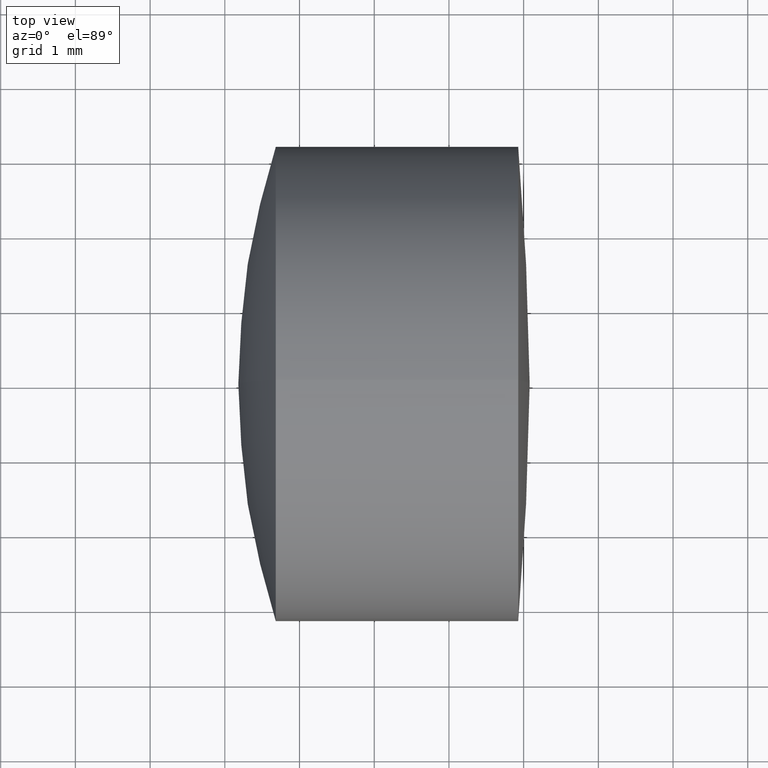
[diagram: clean part render]
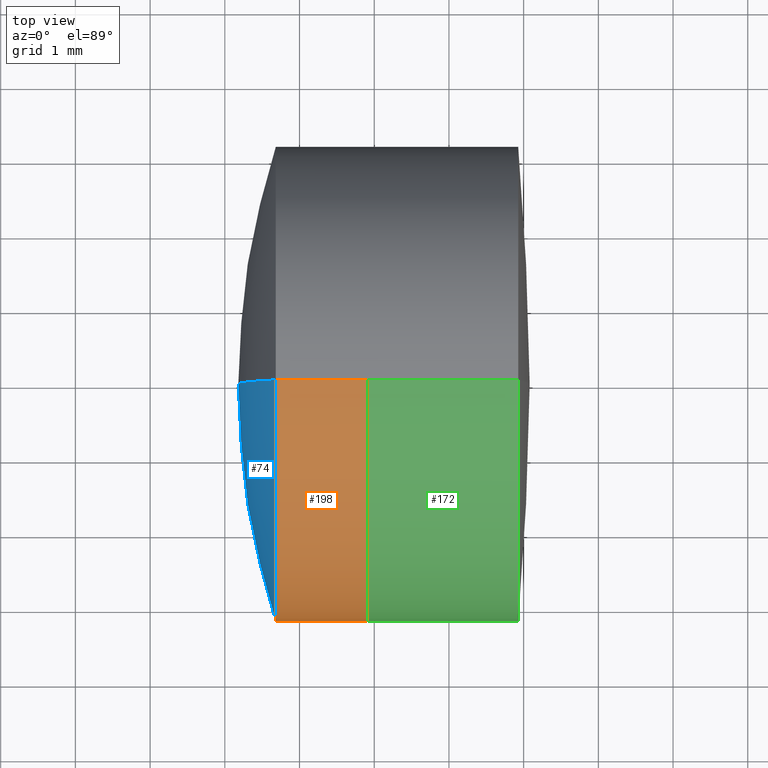
[diagram: same view with three faces highlighted in distinct colors, each labeled with its STEP entity id]
A machine part, top view with three faces highlighted in distinct colors.
Their STEP definitions:

[orange] entity #198 — the highlighted cylindrical surface (partial cylindrical patch) has radius 3.175 mm, axis along (-1, -0, -0).
#4 = CIRCLE ( 'NONE', #324, 3.175000000000000300 ) ;
#9 = EDGE_LOOP ( 'NONE', ( #276, #259, #87, #168 ) ) ;
#47 = VERTEX_POINT ( 'NONE', #88 ) ;
#63 = EDGE_CURVE ( 'NONE', #180, #47, #4, .T. ) ;
#68 = CYLINDRICAL_SURFACE ( 'NONE', #325, 3.174999999999999800 ) ;
#80 = VERTEX_POINT ( 'NONE', #294 ) ;
#86 = DIRECTION ( 'NONE',  ( -1.000000000000000000, -0.0000000000000000000, -0.0000000000000000000 ) ) ;
#87 = ORIENTED_EDGE ( 'NONE', *, *, #167, .T. ) ;
#88 = CARTESIAN_POINT ( 'NONE',  ( 262.9052741446802200, 0.0000000000000000000, 3.175000000000000300 ) ) ;
#92 = CARTESIAN_POINT ( 'NONE',  ( 124.5233095260452400, 3.888253587292846100E-016, -3.174999999999999800 ) ) ;
#95 = CIRCLE ( 'NONE', #319, 3.174999999999999800 ) ;
#102 = DIRECTION ( 'NONE',  ( 0.0000000000000000000, 0.0000000000000000000, 1.000000000000000000 ) ) ;
#107 = CARTESIAN_POINT ( 'NONE',  ( 124.5233095260452400, 0.0000000000000000000, 3.174999999999999800 ) ) ;
#112 = DIRECTION ( 'NONE',  ( -1.000000000000000000, -0.0000000000000000000, -0.0000000000000000000 ) ) ;
#126 = CARTESIAN_POINT ( 'NONE',  ( 261.6822753792524700, 0.0000000000000000000, 0.0000000000000000000 ) ) ;
#130 = FACE_OUTER_BOUND ( 'NONE', #9, .T. ) ;
#139 = DIRECTION ( 'NONE',  ( -1.000000000000000000, -0.0000000000000000000, -0.0000000000000000000 ) ) ;
#143 = VECTOR ( 'NONE', #86, 1000.000000000000000 ) ;
#144 = CARTESIAN_POINT ( 'NONE',  ( 124.5233095260452400, 0.0000000000000000000, 0.0000000000000000000 ) ) ;
#157 = CARTESIAN_POINT ( 'NONE',  ( 262.9052741446802200, 3.888253587292847100E-016, -3.175000000000000700 ) ) ;
#160 = CARTESIAN_POINT ( 'NONE',  ( 262.9052741446802200, 0.0000000000000000000, 0.0000000000000000000 ) ) ;
#167 = EDGE_CURVE ( 'NONE', #47, #80, #273, .T. ) ;
#168 = ORIENTED_EDGE ( 'NONE', *, *, #311, .F. ) ;
#180 = VERTEX_POINT ( 'NONE', #157 ) ;
#186 = CARTESIAN_POINT ( 'NONE',  ( 261.6822753792524700, 0.0000000000000000000, -3.174999999999999800 ) ) ;
#198 = ADVANCED_FACE ( 'NONE', ( #130 ), #68, .T. ) ;
#215 = DIRECTION ( 'NONE',  ( 0.0000000000000000000, 0.0000000000000000000, 1.000000000000000000 ) ) ;
#249 = EDGE_CURVE ( 'NONE', #180, #277, #264, .T. ) ;
#259 = ORIENTED_EDGE ( 'NONE', *, *, #63, .T. ) ;
#264 = LINE ( 'NONE', #92, #333 ) ;
#273 = LINE ( 'NONE', #107, #143 ) ;
#276 = ORIENTED_EDGE ( 'NONE', *, *, #249, .F. ) ;
#277 = VERTEX_POINT ( 'NONE', #186 ) ;
#281 = DIRECTION ( 'NONE',  ( -1.000000000000000000, -0.0000000000000000000, -0.0000000000000000000 ) ) ;
#286 = DIRECTION ( 'NONE',  ( -1.000000000000000000, -0.0000000000000000000, -0.0000000000000000000 ) ) ;
#294 = CARTESIAN_POINT ( 'NONE',  ( 261.6822753792524700, -3.888253587292846100E-016, 3.174999999999999800 ) ) ;
#309 = DIRECTION ( 'NONE',  ( 0.0000000000000000000, 0.0000000000000000000, 1.000000000000000000 ) ) ;
#311 = EDGE_CURVE ( 'NONE', #277, #80, #95, .T. ) ;
#319 = AXIS2_PLACEMENT_3D ( 'NONE', #126, #281, #102 ) ;
#324 = AXIS2_PLACEMENT_3D ( 'NONE', #160, #139, #215 ) ;
#325 = AXIS2_PLACEMENT_3D ( 'NONE', #144, #112, #309 ) ;
#333 = VECTOR ( 'NONE', #286, 1000.000000000000000 ) ;

[blue] entity #74 — the highlighted spherical surface has radius 10.3 mm.
#19 = DIRECTION ( 'NONE',  ( 0.0000000000000000000, -1.000000000000000000, -1.224646799147353200E-016 ) ) ;
#20 = AXIS2_PLACEMENT_3D ( 'NONE', #310, #19, #110 ) ;
#31 = DIRECTION ( 'NONE',  ( -0.0000000000000000000, -1.000000000000000000, -0.0000000000000000000 ) ) ;
#41 = FACE_OUTER_BOUND ( 'NONE', #219, .T. ) ;
#43 = EDGE_CURVE ( 'NONE', #277, #194, #133, .T. ) ;
#50 = AXIS2_PLACEMENT_3D ( 'NONE', #266, #31, #184 ) ;
#55 = CARTESIAN_POINT ( 'NONE',  ( 261.1807127546711100, 0.0000000000000000000, -4.863450668528573700E-016 ) ) ;
#74 = ADVANCED_FACE ( 'NONE', ( #41 ), #265, .T. ) ;
#80 = VERTEX_POINT ( 'NONE', #294 ) ;
#95 = CIRCLE ( 'NONE', #319, 3.174999999999999800 ) ;
#102 = DIRECTION ( 'NONE',  ( 0.0000000000000000000, 0.0000000000000000000, 1.000000000000000000 ) ) ;
#105 = ORIENTED_EDGE ( 'NONE', *, *, #192, .T. ) ;
#110 = DIRECTION ( 'NONE',  ( 0.0000000000000000000, 1.224646799147353200E-016, -1.000000000000000000 ) ) ;
#126 = CARTESIAN_POINT ( 'NONE',  ( 261.6822753792524700, 0.0000000000000000000, 0.0000000000000000000 ) ) ;
#133 = CIRCLE ( 'NONE', #257, 10.29999999999998600 ) ;
#141 = DIRECTION ( 'NONE',  ( 0.0000000000000000000, 0.0000000000000000000, 1.000000000000000000 ) ) ;
#184 = DIRECTION ( 'NONE',  ( 0.0000000000000000000, 0.0000000000000000000, -1.000000000000000000 ) ) ;
#186 = CARTESIAN_POINT ( 'NONE',  ( 261.6822753792524700, 0.0000000000000000000, -3.174999999999999800 ) ) ;
#192 = EDGE_CURVE ( 'NONE', #80, #194, #339, .T. ) ;
#194 = VERTEX_POINT ( 'NONE', #55 ) ;
#219 = EDGE_LOOP ( 'NONE', ( #247, #105, #236 ) ) ;
#236 = ORIENTED_EDGE ( 'NONE', *, *, #43, .F. ) ;
#247 = ORIENTED_EDGE ( 'NONE', *, *, #311, .T. ) ;
#257 = AXIS2_PLACEMENT_3D ( 'NONE', #347, #316, #141 ) ;
#265 = SPHERICAL_SURFACE ( 'NONE', #50, 10.29999999999998600 ) ;
#266 = CARTESIAN_POINT ( 'NONE',  ( 271.4807127546710600, 0.0000000000000000000, 1.443480347080286500E-016 ) ) ;
#277 = VERTEX_POINT ( 'NONE', #186 ) ;
#281 = DIRECTION ( 'NONE',  ( -1.000000000000000000, -0.0000000000000000000, -0.0000000000000000000 ) ) ;
#294 = CARTESIAN_POINT ( 'NONE',  ( 261.6822753792524700, -3.888253587292846100E-016, 3.174999999999999800 ) ) ;
#310 = CARTESIAN_POINT ( 'NONE',  ( 271.4807127546710600, 0.0000000000000000000, 1.443480347080286500E-016 ) ) ;
#311 = EDGE_CURVE ( 'NONE', #277, #80, #95, .T. ) ;
#316 = DIRECTION ( 'NONE',  ( 0.0000000000000000000, 1.000000000000000000, -0.0000000000000000000 ) ) ;
#319 = AXIS2_PLACEMENT_3D ( 'NONE', #126, #281, #102 ) ;
#339 = CIRCLE ( 'NONE', #20, 10.29999999999998600 ) ;
#347 = CARTESIAN_POINT ( 'NONE',  ( 271.4807127546710600, 0.0000000000000000000, 1.443480347080286500E-016 ) ) ;

[green] entity #172 — the highlighted cylindrical surface (partial cylindrical patch) has radius 3.175 mm, axis along (-1, -0, -0).
#6 = AXIS2_PLACEMENT_3D ( 'NONE', #280, #101, #251 ) ;
#8 = ORIENTED_EDGE ( 'NONE', *, *, #345, .F. ) ;
#27 = DIRECTION ( 'NONE',  ( -1.000000000000000000, -0.0000000000000000000, -0.0000000000000000000 ) ) ;
#35 = CARTESIAN_POINT ( 'NONE',  ( 264.9271534009465100, 3.888253587292847600E-016, -3.175000000000000700 ) ) ;
#36 = CARTESIAN_POINT ( 'NONE',  ( -0.5519199926577972300, 0.0000000000000000000, 3.175000000000001600 ) ) ;
#37 = EDGE_CURVE ( 'NONE', #210, #220, #199, .T. ) ;
#46 = VERTEX_POINT ( 'NONE', #35 ) ;
#67 = EDGE_CURVE ( 'NONE', #46, #231, #188, .T. ) ;
#70 = CARTESIAN_POINT ( 'NONE',  ( 264.9271534009465100, 0.0000000000000000000, 0.0000000000000000000 ) ) ;
#101 = DIRECTION ( 'NONE',  ( -1.000000000000000000, -0.0000000000000000000, -0.0000000000000000000 ) ) ;
#119 = AXIS2_PLACEMENT_3D ( 'NONE', #213, #27, #239 ) ;
#131 = CARTESIAN_POINT ( 'NONE',  ( 264.9271534009465100, 0.0000000000000000000, 3.175000000000000700 ) ) ;
#154 = CARTESIAN_POINT ( 'NONE',  ( 262.9052741446802200, 3.888253587292849000E-016, -3.175000000000002000 ) ) ;
#164 = ORIENTED_EDGE ( 'NONE', *, *, #37, .T. ) ;
#172 = ADVANCED_FACE ( 'NONE', ( #206 ), #195, .T. ) ;
#177 = CARTESIAN_POINT ( 'NONE',  ( 262.9052741446802200, 0.0000000000000000000, 3.175000000000002000 ) ) ;
#188 = LINE ( 'NONE', #222, #269 ) ;
#191 = DIRECTION ( 'NONE',  ( -1.000000000000000000, -0.0000000000000000000, -0.0000000000000000000 ) ) ;
#195 = CYLINDRICAL_SURFACE ( 'NONE', #119, 3.175000000000001600 ) ;
#199 = LINE ( 'NONE', #36, #337 ) ;
#206 = FACE_OUTER_BOUND ( 'NONE', #248, .T. ) ;
#207 = DIRECTION ( 'NONE',  ( 0.0000000000000000000, 0.0000000000000000000, 1.000000000000000000 ) ) ;
#210 = VERTEX_POINT ( 'NONE', #131 ) ;
#213 = CARTESIAN_POINT ( 'NONE',  ( -0.5519199926577972300, 0.0000000000000000000, 0.0000000000000000000 ) ) ;
#220 = VERTEX_POINT ( 'NONE', #177 ) ;
#222 = CARTESIAN_POINT ( 'NONE',  ( -0.5519199926577972300, 3.888253587292848100E-016, -3.175000000000001600 ) ) ;
#231 = VERTEX_POINT ( 'NONE', #154 ) ;
#239 = DIRECTION ( 'NONE',  ( 0.0000000000000000000, 0.0000000000000000000, 1.000000000000000000 ) ) ;
#243 = ORIENTED_EDGE ( 'NONE', *, *, #275, .T. ) ;
#248 = EDGE_LOOP ( 'NONE', ( #346, #243, #164, #8 ) ) ;
#251 = DIRECTION ( 'NONE',  ( 0.0000000000000000000, 0.0000000000000000000, 1.000000000000000000 ) ) ;
#256 = CIRCLE ( 'NONE', #338, 3.175000000000000700 ) ;
#269 = VECTOR ( 'NONE', #344, 1000.000000000000000 ) ;
#275 = EDGE_CURVE ( 'NONE', #46, #210, #256, .T. ) ;
#280 = CARTESIAN_POINT ( 'NONE',  ( 262.9052741446802200, 0.0000000000000000000, 0.0000000000000000000 ) ) ;
#284 = CIRCLE ( 'NONE', #6, 3.175000000000002900 ) ;
#318 = DIRECTION ( 'NONE',  ( -1.000000000000000000, -0.0000000000000000000, -0.0000000000000000000 ) ) ;
#337 = VECTOR ( 'NONE', #318, 1000.000000000000000 ) ;
#338 = AXIS2_PLACEMENT_3D ( 'NONE', #70, #191, #207 ) ;
#344 = DIRECTION ( 'NONE',  ( -1.000000000000000000, -0.0000000000000000000, -0.0000000000000000000 ) ) ;
#345 = EDGE_CURVE ( 'NONE', #231, #220, #284, .T. ) ;
#346 = ORIENTED_EDGE ( 'NONE', *, *, #67, .F. ) ;